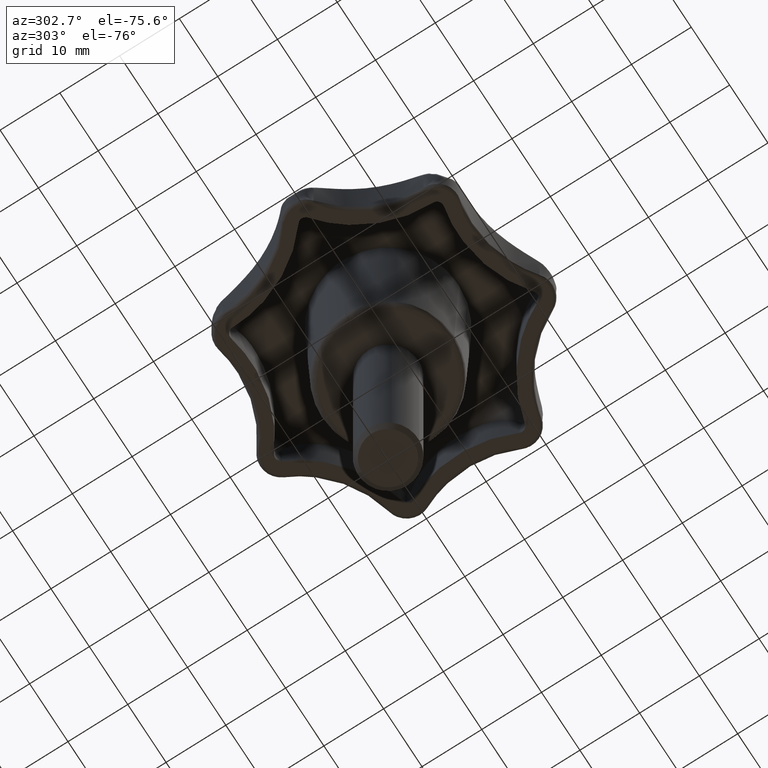
[diagram: clean part render]
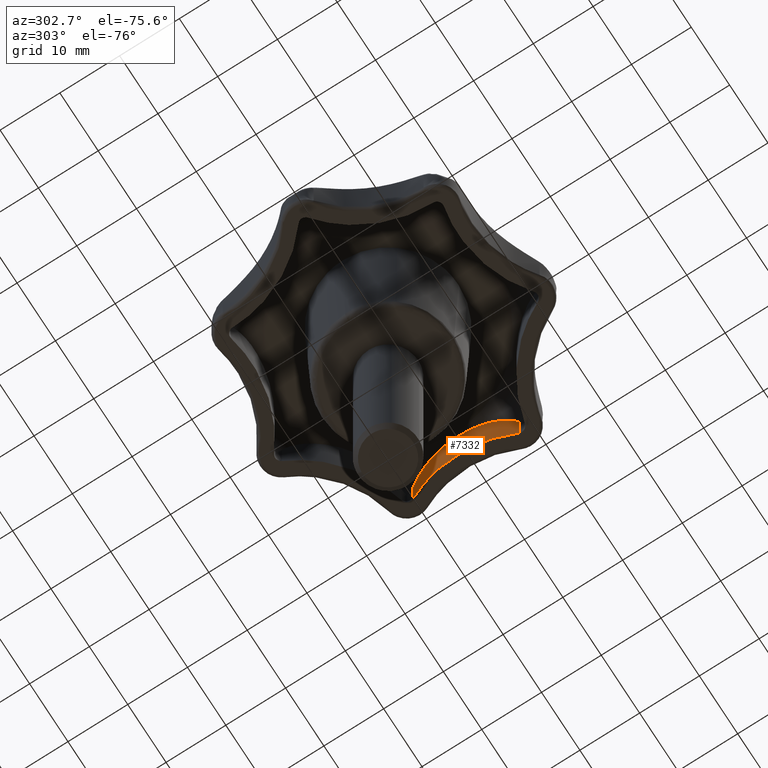
[diagram: same view with one face highlighted and labeled with its STEP entity id]
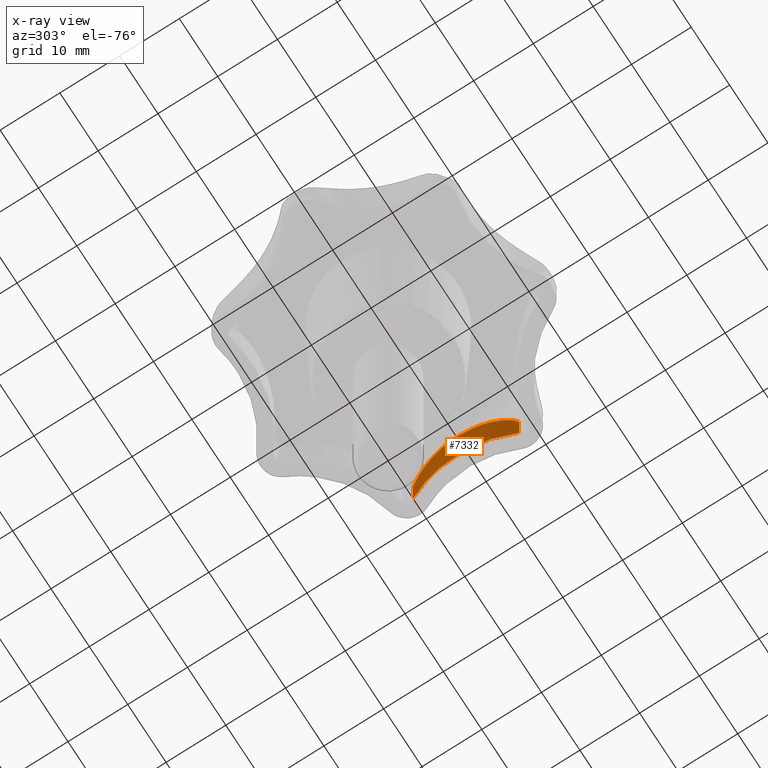
[diagram: x-ray of the same camera — body ghosted, the highlighted face saturated]
A machine part, auxiliary view. The second image highlights one B-rep face of the part: STEP entity #7332.
The next image is the same camera in x-ray: the body ghosted, the highlighted face saturated — about 0% of this face is hidden behind the body in this view.
In plain terms, the highlighted face is a freeform B-spline surface patch.
Its self-contained STEP definition (entity closure, byte-faithful):
#5997=CARTESIAN_POINT('',(18.887000906894460,-5.103182161795097,26.574586593994759));
#5998=VERTEX_POINT('',#5997);
#6012=CARTESIAN_POINT('',(20.271800252354801,-8.894616744012819,23.279895292499450));
#6013=VERTEX_POINT('',#6012);
#6014=CARTESIAN_POINT('',(18.887000906894460,-5.103182161795097,26.574586593994759));
#6015=CARTESIAN_POINT('',(18.891695635224181,-5.121447678763798,26.568490515032352));
#6016=CARTESIAN_POINT('',(18.896409445654989,-5.139682891889325,26.562339900640531));
#6017=CARTESIAN_POINT('',(19.006863072396140,-5.564557546326928,26.417505863569581));
#6018=CARTESIAN_POINT('',(19.122038791182060,-5.956076129979971,26.251554593220479));
#6019=CARTESIAN_POINT('',(19.273713769662411,-6.423291087293934,26.000093273853750));
#6020=CARTESIAN_POINT('',(19.304429917282359,-6.515620233019925,25.947586848113058));
#6021=CARTESIAN_POINT('',(19.366502401385571,-6.697946476804150,25.837834895899970));
#6022=CARTESIAN_POINT('',(19.397900655452268,-6.788060916745506,25.780510255475061));
#6023=CARTESIAN_POINT('',(19.492584094140099,-7.053965416506320,25.601419857490878));
#6024=CARTESIAN_POINT('',(19.555701177470080,-7.223499111572944,25.473804459032159));
#6025=CARTESIAN_POINT('',(19.680524991937521,-7.546726776208829,25.201149795443950));
#6026=CARTESIAN_POINT('',(19.742234320479358,-7.700425499828937,25.056116675306150));
#6027=CARTESIAN_POINT('',(19.832626976247120,-7.918623841454799,24.824530856128799));
#6028=CARTESIAN_POINT('',(19.862395047235822,-7.989295830955375,24.744993180444940));
#6029=CARTESIAN_POINT('',(19.921003384206600,-8.126399965516258,24.581022234452249));
#6030=CARTESIAN_POINT('',(19.949873693855569,-8.192900239693252,24.496497079151681));
#6031=CARTESIAN_POINT('',(20.034577030400740,-8.385382117515650,24.235779576401342));
#6032=CARTESIAN_POINT('',(20.087741126904991,-8.502644189298772,24.054835230337900));
#6033=CARTESIAN_POINT('',(20.186110345320969,-8.715229337269420,23.678430757419839));
#6034=CARTESIAN_POINT('',(20.231320449172571,-8.810559632827941,23.482976023811560));
#6035=CARTESIAN_POINT('',(20.271800252354801,-8.894616744012819,23.279895292499450));
#6036=B_SPLINE_CURVE_WITH_KNOTS('',3,(#6014,#6015,#6016,#6017,#6018,#6019,#6020,#6021,#6022,#6023,#6024,#6025,#6026,#6027,#6028,#6029,#6030,#6031,#6032,#6033,#6034,#6035),.UNSPECIFIED.,.F.,.U.,(4,2,2,2,2,2,2,2,2,2,4),(0.747202166359397,0.750000000000002,0.812500000000002,0.828125000000002,0.843750000000002,0.875000000000002,0.906250000000001,0.921875000000001,0.937500000000001,0.968750000000001,1.0),.UNSPECIFIED.);
#6037=EDGE_CURVE('',#5998,#6013,#6036,.T.);
#6746=CARTESIAN_POINT('',(20.271799865738799,8.894617256389621,23.279895717243349));
#6747=VERTEX_POINT('',#6746);
#6767=CARTESIAN_POINT('',(18.241660569880310,0.0,27.240201496682339));
#6768=VERTEX_POINT('',#6767);
#6769=CARTESIAN_POINT('',(20.271799865738799,8.894617256389621,23.279895717243349));
#6770=CARTESIAN_POINT('',(20.231298694748538,8.810515761469500,23.483083627836201));
#6771=CARTESIAN_POINT('',(20.186208642906859,8.715427795605370,23.677923190206460));
#6772=CARTESIAN_POINT('',(20.088505570258800,8.504309971015287,24.052040515012479));
#6773=CARTESIAN_POINT('',(20.035887362169792,8.388270175819447,24.231310429274622));
#6774=CARTESIAN_POINT('',(19.952391228996021,8.198663266778723,24.488953990388421));
#6775=CARTESIAN_POINT('',(19.923796560868620,8.132864429261847,24.572954549046649));
#6776=CARTESIAN_POINT('',(19.865253545982540,7.996045803540638,24.737225820527868));
#6777=CARTESIAN_POINT('',(19.835242573231120,7.924874707269767,24.817655797822901));
#6778=CARTESIAN_POINT('',(19.743855611880640,7.704457622466930,25.052292157000551));
#6779=CARTESIAN_POINT('',(19.681763149414159,7.549856798630136,25.198317281288990));
#6780=CARTESIAN_POINT('',(19.556772051418271,7.226346376068122,25.471591157721360));
#6781=CARTESIAN_POINT('',(19.493870248637389,7.057430965582343,25.598830924017712));
#6782=CARTESIAN_POINT('',(19.399930763980080,6.793831818172311,25.776745326707420));
#6783=CARTESIAN_POINT('',(19.368685478619259,6.704259168507536,25.833889632033941));
#6784=CARTESIAN_POINT('',(19.306491744002489,6.521768832248342,25.944021118175790));
#6785=CARTESIAN_POINT('',(19.275469003838111,6.428619318592378,25.997129145425241));
#6786=CARTESIAN_POINT('',(19.122548839359411,5.957949876962140,26.250919387851749));
#6787=CARTESIAN_POINT('',(19.007465277293331,5.566470012443062,26.416596613155320));
#6788=CARTESIAN_POINT('',(18.797314739588909,4.758899697817852,26.692397658246200));
#6789=CARTESIAN_POINT('',(18.702220100559099,4.342774754754633,26.802402458350301));
#6790=CARTESIAN_POINT('',(18.598437946769270,3.809510088252012,26.913587165908702));
#6791=CARTESIAN_POINT('',(18.578442250585049,3.702226249963669,26.934487691756051));
#6792=CARTESIAN_POINT('',(18.540226616879401,3.487681128152896,26.973602866257981));
#6793=CARTESIAN_POINT('',(18.521973957409742,3.380255734551330,26.991852912896881));
#6794=CARTESIAN_POINT('',(18.469785897756189,3.057544232093162,27.043024086990378));
#6795=CARTESIAN_POINT('',(18.438420273788211,2.841823642337647,27.072378385858698));
#6796=CARTESIAN_POINT('',(18.354640675496778,2.193076014581133,27.148438509909699));
#6797=CARTESIAN_POINT('',(18.312538235543549,1.758475113405070,27.183310712126950));
#6798=CARTESIAN_POINT('',(18.256128279715242,0.885576428788694,27.229132428418570));
#6799=CARTESIAN_POINT('',(18.241816265878580,0.447278847607520,27.240080024422419));
#6800=CARTESIAN_POINT('',(18.241660991316390,0.004794135402627,27.240201163089601));
#6801=CARTESIAN_POINT('',(18.241660570436530,0.002397094444117,27.240201493080491));
#6802=CARTESIAN_POINT('',(18.241660569880310,0.0,27.240201496682339));
#6803=B_SPLINE_CURVE_WITH_KNOTS('',3,(#6769,#6770,#6771,#6772,#6773,#6774,#6775,#6776,#6777,#6778,#6779,#6780,#6781,#6782,#6783,#6784,#6785,#6786,#6787,#6788,#6789,#6790,#6791,#6792,#6793,#6794,#6795,#6796,#6797,#6798,#6799,#6800,#6801,#6802),.UNSPECIFIED.,.F.,.U.,(4,2,2,2,2,2,2,2,2,2,2,2,2,2,2,2,4),(0.0,0.031250000000001,0.062500000000001,0.078125000000001,0.093750000000002,0.125000000000002,0.156250000000002,0.171875000000002,0.187500000000002,0.250000000000002,0.312500000000003,0.328125000000003,0.343750000000003,0.375000000000003,0.437500000000003,0.500000000000003,0.500340413307668),.UNSPECIFIED.);
#6804=EDGE_CURVE('',#6747,#6768,#6803,.T.);
#6806=CARTESIAN_POINT('',(18.241660569880310,0.0,27.240201496682339));
#6807=CARTESIAN_POINT('',(18.241660568849259,-0.217656590305138,27.240201809909820));
#6808=CARTESIAN_POINT('',(18.245125998197800,-0.435754151876446,27.237511152891340));
#6809=CARTESIAN_POINT('',(18.255633091572950,-0.764782972321415,27.229230241101931));
#6810=CARTESIAN_POINT('',(18.260064093381729,-0.875446010687220,27.225724905105452));
#6811=CARTESIAN_POINT('',(18.270688461318830,-1.096129540626330,27.217245905428062));
#6812=CARTESIAN_POINT('',(18.276883811061690,-1.206247654935765,27.212270680829320));
#6813=CARTESIAN_POINT('',(18.312233024653949,-1.755705289918742,27.183566654031360));
#6814=CARTESIAN_POINT('',(18.354501691987949,-2.191674017655774,27.148553955132460));
#6815=CARTESIAN_POINT('',(18.465983034965362,-3.055581619381463,27.047365964573139));
#6816=CARTESIAN_POINT('',(18.535204498945848,-3.483521609214038,26.981207490288430));
#6817=CARTESIAN_POINT('',(18.658421954583758,-4.118247290295912,26.849384276233909));
#6818=CARTESIAN_POINT('',(18.702723956554340,-4.328619600645441,26.799970963733230));
#6819=CARTESIAN_POINT('',(18.773893358341340,-4.642169742595730,26.716041872800229));
#6820=CARTESIAN_POINT('',(18.798446212349081,-4.746528923943089,26.686372043333520));
#6821=CARTESIAN_POINT('',(18.844354373794861,-4.935062162985663,26.629337406701911));
#6822=CARTESIAN_POINT('',(18.865477094403008,-5.019440644758595,26.602535147873098));
#6823=CARTESIAN_POINT('',(18.887000906894460,-5.103182161795097,26.574586593994759));
#6824=B_SPLINE_CURVE_WITH_KNOTS('',3,(#6806,#6807,#6808,#6809,#6810,#6811,#6812,#6813,#6814,#6815,#6816,#6817,#6818,#6819,#6820,#6821,#6822,#6823),.UNSPECIFIED.,.F.,.U.,(4,2,2,2,2,2,2,2,4),(0.500340413307668,0.531250000000003,0.546875000000003,0.562500000000003,0.625000000000003,0.687500000000003,0.718750000000003,0.734375000000003,0.747202166359397),.UNSPECIFIED.);
#6825=EDGE_CURVE('',#6768,#5998,#6824,.T.);
#7286=CARTESIAN_POINT('',(20.605368672118239,9.556404361737258,27.496206534099400));
#7287=CARTESIAN_POINT('',(20.605368672118239,9.556404361737258,16.737594836647510));
#7288=CARTESIAN_POINT('',(15.525914489146999,-0.083463052909858,27.496206534099397));
#7289=CARTESIAN_POINT('',(15.525914489146999,-0.083463052909858,16.737594836647510));
#7290=CARTESIAN_POINT('',(20.674549149848513,-9.686559412912832,27.496206534099404));
#7291=CARTESIAN_POINT('',(20.674549149848513,-9.686559412912832,16.737594836647517));
#7299=(BOUNDED_SURFACE()B_SPLINE_SURFACE(1,2,((#7286,#7288,#7290),(#7287,#7289,#7291)),.UNSPECIFIED.,.F.,.F.,.U.)B_SPLINE_SURFACE_WITH_KNOTS((2,2),(3,3),(0.0,10.758611697451890),(0.0,20.438481422971140),.UNSPECIFIED.)GEOMETRIC_REPRESENTATION_ITEM()RATIONAL_B_SPLINE_SURFACE(((1.0,0.879150756914576,0.991265390705033),(1.0,0.879150756914576,0.991265390705033)))REPRESENTATION_ITEM('')SURFACE());
#7300=CARTESIAN_POINT('',(20.271800252354801,-8.894616744012819,17.0));
#7301=VERTEX_POINT('',#7300);
#7302=CARTESIAN_POINT('',(20.271800252354801,-8.894616744012819,23.279895292499450));
#7303=CARTESIAN_POINT('',(20.271800252354801,-8.894616744012819,17.0));
#7304=QUASI_UNIFORM_CURVE('',1,(#7302,#7303),.UNSPECIFIED.,.F.,.U.);
#7305=EDGE_CURVE('',#6013,#7301,#7304,.T.);
#7306=ORIENTED_EDGE('',*,*,#7305,.F.);
#7307=ORIENTED_EDGE('',*,*,#6037,.F.);
#7308=ORIENTED_EDGE('',*,*,#6825,.F.);
#7309=ORIENTED_EDGE('',*,*,#6804,.F.);
#7310=CARTESIAN_POINT('',(20.271799865738799,8.894617256389621,17.0));
#7311=VERTEX_POINT('',#7310);
#7312=CARTESIAN_POINT('',(20.271799865738799,8.894617256389621,23.279895717243349));
#7313=CARTESIAN_POINT('',(20.271799865738799,8.894617256389621,17.0));
#7314=QUASI_UNIFORM_CURVE('',1,(#7312,#7313),.UNSPECIFIED.,.F.,.U.);
#7315=EDGE_CURVE('',#6747,#7311,#7314,.T.);
#7316=ORIENTED_EDGE('',*,*,#7315,.T.);
#7317=CARTESIAN_POINT('',(20.271800252354819,-8.894616744012815,17.0));
#7318=CARTESIAN_POINT('',(15.988378451233991,0.000000163096165,16.999999999999996));
#7319=CARTESIAN_POINT('',(20.271800379868530,8.894617008797772,17.0));
#7327=(BOUNDED_CURVE()B_SPLINE_CURVE(2,(#7317,#7318,#7319),.UNSPECIFIED.,.F.,.U.)CURVE()GEOMETRIC_REPRESENTATION_ITEM()QUASI_UNIFORM_CURVE()RATIONAL_B_SPLINE_CURVE((1.0,0.900968862628699,1.0))REPRESENTATION_ITEM(''));
#7328=EDGE_CURVE('',#7301,#7311,#7327,.T.);
#7329=ORIENTED_EDGE('',*,*,#7328,.F.);
#7330=EDGE_LOOP('',(#7306,#7307,#7308,#7309,#7316,#7329));
#7331=FACE_OUTER_BOUND('',#7330,.T.);
#7332=ADVANCED_FACE('',(#7331),#7299,.T.);